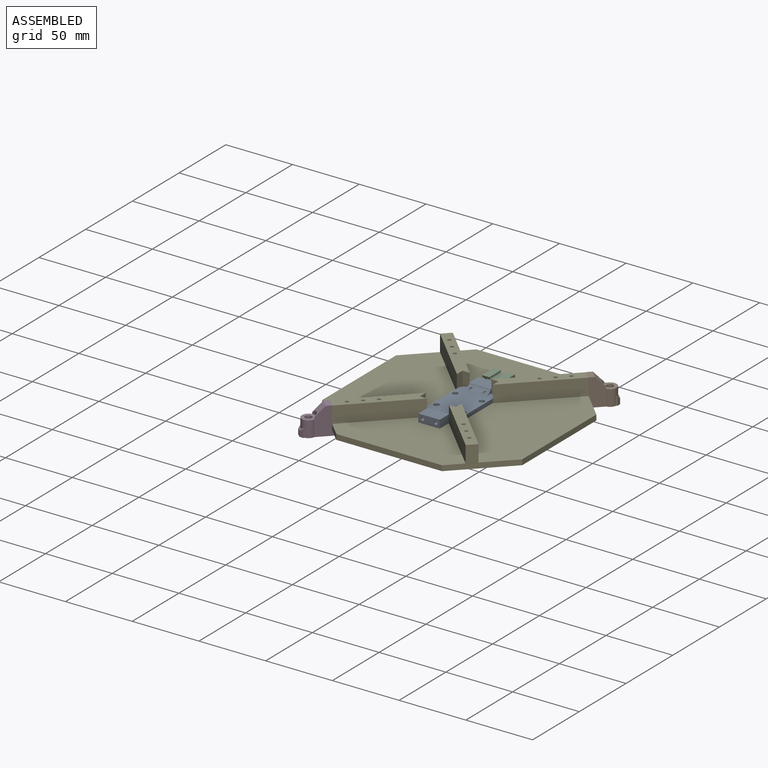
[diagram: assembled view]
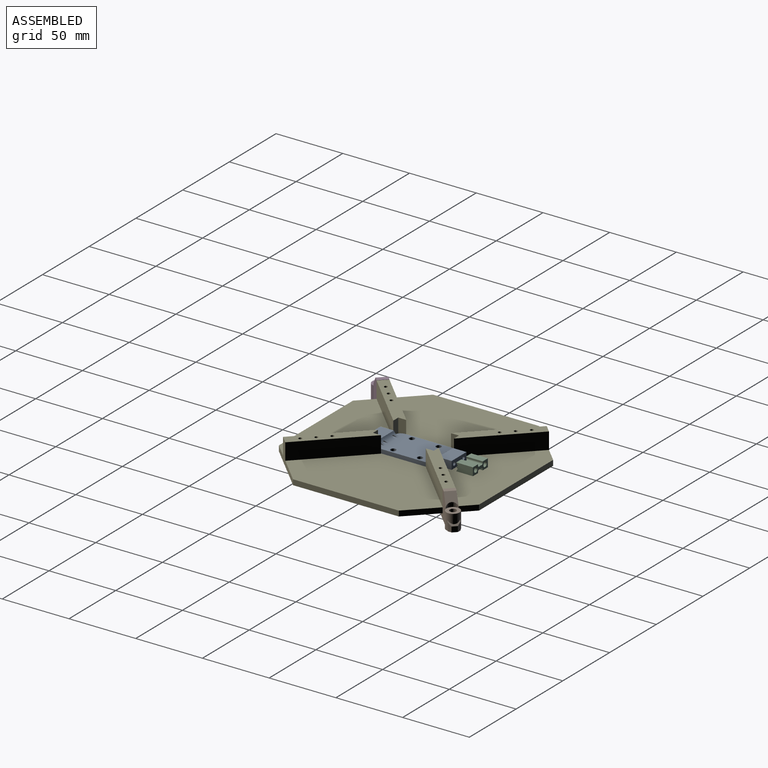
[diagram: assembled view, second angle]
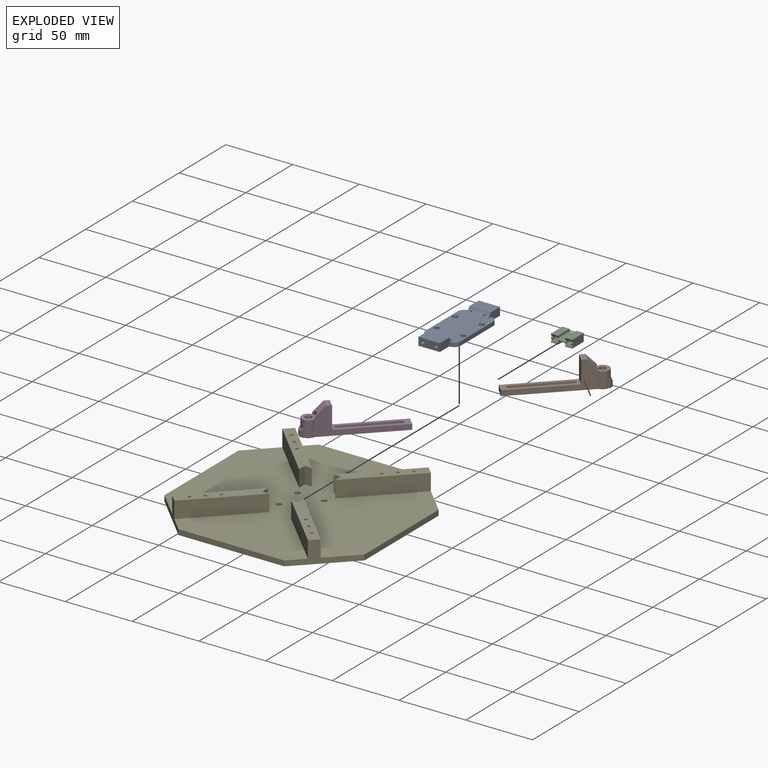
[diagram: exploded view]
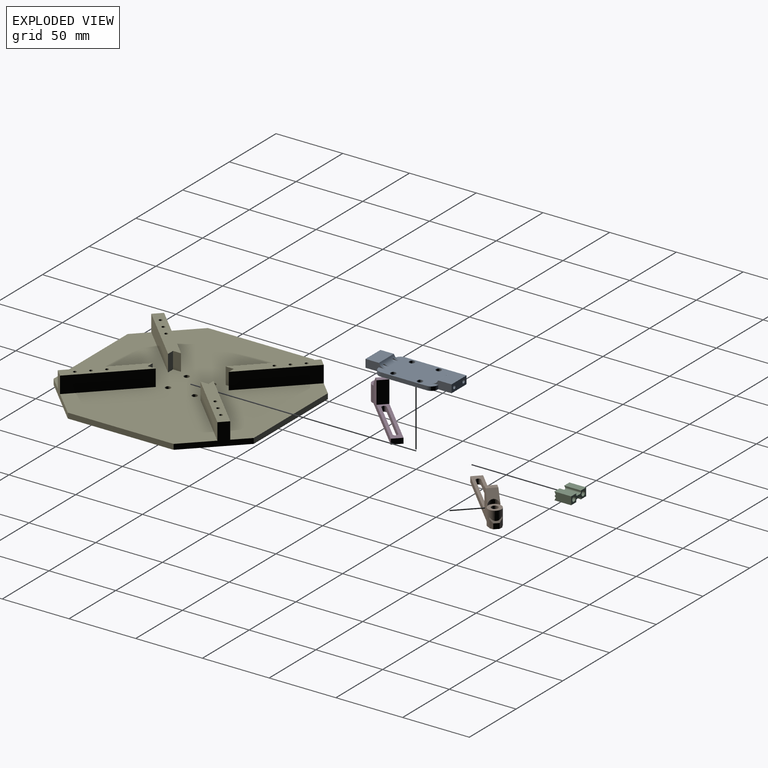
[diagram: exploded view, second angle]
ASSEMBLY  parts=5 mates=11
PART A: 34 faces, bbox 26.5x64.5x6 mm
  f0: plane 2.5x1.25mm, normal (0,-1,0), area 2.5mm2, adj f14,f27
  f1: plane 2.5x1.25mm, normal (0,-1,0), area 2.5mm2, adj f14,f26
  f2: plane 3x0.25mm, normal (0,-1,0), area 0.8mm2, adj f14,f15,f22,f33
  f3: plane 2.5x1.25mm, normal (0,1,0), area 2.5mm2, adj f14,f21
  f4: plane 3x0.25mm, normal (0,1,0), area 0.8mm2, adj f14,f15,f16,f30
  f5: plane 2.5x1.25mm, normal (0,1,0), area 2.5mm2, adj f14,f20
  f6: plane 34.5x3mm, normal (1,0,0), area 103.5mm2, adj f14,f15,f30,f33
  f7: plane 3x0.25mm, normal (0,1,0), area 0.8mm2, adj f14,f15,f18,f31
  f8: plane 34.5x3mm, normal (-1,0,0), area 103.5mm2, adj f14,f15,f31,f32
  f9: cylinder r=2mm len=4mm, axis (0,0,-1), area 37.7mm2, adj f14,f15
  f10: cylinder r=2mm len=4mm, axis (0,0,-1), area 37.7mm2, adj f14,f15
  f11: cylinder r=2mm len=4mm, axis (0,0,-1), area 37.7mm2, adj f14,f15
  f12: plane 3x0.25mm, normal (0,-1,0), area 0.8mm2, adj f14,f15,f24,f32
  f13: cylinder r=2mm len=4mm, axis (0,0,-1), area 37.7mm2, adj f14,f15
  f14: plane 44.5x26.5mm, normal (0,0,1), area 1006.7mm2, adj f0,f1,f2,f3,f4,f5,f6,f7
  f15: plane 64.5x26.5mm, normal (0,0,-1), area 1427.5mm2, adj f2,f4,f6,f7,f8,f9,f10,f11
  f16: plane 14.58x6mm, normal (1,0,0), area 63.8mm2, adj f4,f14,f15,f17,f19,f29
  f17: plane 16x6mm, normal (0,1,0), area 86.2mm2, adj f15,f16,f18,f19,f20,f21
  f18: plane 14.58x6mm, normal (-1,0,0), area 63.8mm2, adj f7,f14,f15,f17,f19,f29
  f19: plane 16x10mm, normal (0,0,1), area 160mm2, adj f16,f17,f18,f29
  f20: cylinder r=1.25mm len=14.58mm, axis (0,1,0), area 86.4mm2, adj f5,f14,f17,f29
  f21: cylinder r=1.25mm len=14.58mm, axis (0,1,0), area 86.4mm2, adj f3,f14,f17,f29
  f22: plane 14.58x6mm, normal (1,0,0), area 63.8mm2, adj f2,f14,f15,f23,f25,f28
  f23: plane 16x6mm, normal (0,-1,0), area 86.2mm2, adj f15,f22,f24,f25,f26,f27
  f24: plane 14.58x6mm, normal (-1,0,0), area 63.8mm2, adj f12,f14,f15,f23,f25,f28
  f25: plane 16x10mm, normal (0,0,1), area 160mm2, adj f22,f23,f24,f28
  f26: cylinder r=1.25mm len=14.58mm, axis (0,-1,0), area 86.4mm2, adj f1,f14,f23,f28
  f27: cylinder r=1.25mm len=14.58mm, axis (0,-1,0), area 86.4mm2, adj f0,f14,f23,f28
  f28: cylinder r=5mm len=16mm, axis (1,0,0), area 77mm2, adj f14,f22,f24,f25,f26,f27
  f29: cylinder r=5mm len=16mm, axis (-1,0,0), area 77mm2, adj f14,f16,f18,f19,f20,f21
  f30: cylinder r=5mm len=5mm, axis (0,0,1), area 23.6mm2, adj f4,f6,f14,f15
  f31: cylinder r=5mm len=5mm, axis (0,0,-1), area 23.6mm2, adj f7,f8,f14,f15
  f32: cylinder r=5mm len=5mm, axis (0,0,1), area 23.6mm2, adj f8,f12,f14,f15
  f33: cylinder r=5mm len=5mm, axis (0,0,-1), area 23.6mm2, adj f2,f6,f14,f15
PART B: 22 faces, bbox 70x10x20.6 mm
  f0: plane 8x7.26mm, normal (-0.72,0,-0.69), area 64.6mm2, adj f9,f11,f12,f21
  f1: cylinder r=2.5mm len=12mm, axis (0,0,1), area 188.5mm2, adj f5,f18
  f2: plane 7.11x1mm, normal (0,-1,0), area 6.6mm2, adj f5,f8,f17,f19
  f3: plane 7.11x1mm, normal (0,1,0), area 6.6mm2, adj f5,f8,f17,f20
  f4: plane 50x8mm, normal (0,0,-1), area 250.4mm2, adj f6,f10,f11,f12,f13,f14,f15,f16
  f5: plane 70x10mm, normal (0,0,1), area 394.9mm2, adj f1,f2,f3,f6,f7,f11,f12,f13
  f6: plane 8x4mm, normal (1,0,0), area 32mm2, adj f4,f5,f11,f12
  f7: plane 4x4mm, normal (-1,0,0), area 16mm2, adj f5,f8,f19,f20
  f8: plane 8x3.11mm, normal (-0.72,0,-0.69), area 12.7mm2, adj f2,f3,f7,f17,f19,f20
  f9: plane 8x4mm, normal (0,0,-1), area 32mm2, adj f0,f10,f11,f12
  f10: plane 16.6x8mm, normal (1,0,0), area 132.8mm2, adj f4,f9,f11,f12
  f11: plane 61x20.6mm, normal (0,-1,0), area 401.2mm2, adj f0,f4,f5,f6,f9,f10,f17,f21
  f12: plane 61x20.6mm, normal (0,1,0), area 401.2mm2, adj f0,f4,f5,f6,f9,f10,f17,f21
  f13: plane 40x4mm, normal (0,-1,0), area 160mm2, adj f4,f5,f14,f16
  f14: cylinder r=1.75mm len=4mm, axis (0,0,1), area 22mm2, adj f4,f5,f13,f15
  f15: plane 40x4mm, normal (0,1,0), area 160mm2, adj f4,f5,f14,f16
  f16: cylinder r=1.75mm len=4mm, axis (0,0,1), area 22mm2, adj f4,f5,f13,f15
  f17: cylinder r=5mm len=12mm, axis (0,0,1), area 212.4mm2, adj f2,f3,f5,f8,f11,f12,f18
  f18: plane 10x10mm, normal (0,0,-1), area 58.9mm2, adj f1,f17,f21
  f19: plane 6.08x2mm, normal (-0.71,-0.71,0), area 14.2mm2, adj f2,f5,f7,f8
  f20: plane 6.08x2mm, normal (-0.71,0.71,0), area 14.2mm2, adj f3,f5,f7,f8
  f21: extruded ~8x3.41mm, area 25mm2, adj f0,f11,f12,f18
PART C: 29 faces, bbox 16x12.5x6 mm
  f0: plane 12.5x5.5mm, normal (0,0,1), area 68.8mm2, adj f2,f9,f15,f23
  f1: plane 12.5x5.5mm, normal (0,0,-1), area 68.8mm2, adj f2,f9,f16,f21
  f2: plane 16x6mm, normal (0,-1,0), area 57.6mm2, adj f0,f1,f5,f6,f7,f8,f9,f10
  f3: plane 6.5x2mm, normal (0,0.89,-0.45), area 10.8mm2, adj f5,f7,f8,f14,f18,f22,f27
  f4: plane 6.5x2mm, normal (0,0.89,0.45), area 10.8mm2, adj f5,f7,f10,f11,f12,f19,f25
  f5: plane 12.5x6mm, normal (1,0,0), area 72mm2, adj f2,f3,f4,f8,f10,f12,f18
  f6: cylinder r=1.75mm len=12.5mm, axis (0,1,0), area 130.2mm2, adj f2,f11,f13,f14,f15,f16,f17
  f7: cylinder r=1.75mm len=12.5mm, axis (0,1,0), area 130.2mm2, adj f2,f3,f4,f11,f12,f14,f18
  f8: plane 12.5x5.5mm, normal (0,0,1), area 68.8mm2, adj f2,f3,f5,f22
  f9: plane 12.5x6mm, normal (-1,0,0), area 72mm2, adj f0,f1,f2,f13,f15,f16,f17
  f10: plane 12.5x5.5mm, normal (0,0,-1), area 68.8mm2, adj f2,f4,f5,f19
  f11: plane 7.13x1mm, normal (0,0.71,-0.71), area 9.5mm2, adj f4,f6,f7,f14,f16,f20
  f12: plane 1.56x1mm, normal (0,0.71,-0.71), area 1.9mm2, adj f4,f5,f7,f18
  f13: plane 1.56x1mm, normal (0,0.71,0.71), area 1.9mm2, adj f6,f9,f15,f17
  f14: plane 7.13x1mm, normal (0,0.71,0.71), area 9.5mm2, adj f3,f6,f7,f11,f15,f24
  f15: plane 6.5x2mm, normal (0,0.89,-0.45), area 10.8mm2, adj f0,f6,f9,f13,f14,f23,f28
  f16: plane 6.5x2mm, normal (0,0.89,0.45), area 10.8mm2, adj f1,f6,f9,f11,f17,f21,f26
  f17: plane 1.56x1mm, normal (0,0.71,-0.71), area 1.9mm2, adj f6,f9,f13,f16
  f18: plane 1.56x1mm, normal (0,0.71,0.71), area 1.9mm2, adj f3,f5,f7,f12
  f19: plane 12.5x1mm, normal (-1,0,0), area 12.2mm2, adj f2,f4,f10,f25
  f20: plane 11.5x3mm, normal (0,0,-1), area 34.5mm2, adj f2,f11,f25,f26
  f21: plane 12.5x1mm, normal (1,0,0), area 12.2mm2, adj f1,f2,f16,f26
  f22: plane 12.5x1mm, normal (-1,0,0), area 12.3mm2, adj f2,f3,f8,f27
  f23: plane 12.5x1mm, normal (1,0,0), area 12.3mm2, adj f0,f2,f15,f28
  f24: plane 11.5x3mm, normal (0,0,1), area 34.5mm2, adj f2,f14,f27,f28
  f25: cylinder r=1mm len=12mm, axis (0,-1,0), area 18.3mm2, adj f2,f4,f19,f20
  f26: cylinder r=1mm len=12mm, axis (0,1,0), area 18.3mm2, adj f2,f16,f20,f21
  f27: cylinder r=1mm len=12mm, axis (0,1,0), area 18.3mm2, adj f2,f3,f22,f24
  f28: cylinder r=1mm len=12mm, axis (0,-1,0), area 18.3mm2, adj f2,f15,f23,f24
PART D: same geometry as B
PART E: 70 faces, bbox 150x150x16.5 mm
  f0: plane 150x150mm, normal (0,0,-1), area 19551.5mm2, adj f14,f15,f16,f17,f18,f19,f20,f21
  f1: cylinder r=1.25mm len=13.5mm, axis (0,0,1), area 106mm2, adj f41,f69
  f2: cylinder r=1.25mm len=13.5mm, axis (0,0,1), area 106mm2, adj f41,f67
  f3: cylinder r=1.25mm len=13.5mm, axis (0,0,1), area 106mm2, adj f41,f65
  f4: cylinder r=1.25mm len=13.5mm, axis (0,0,1), area 106mm2, adj f36,f62
  f5: cylinder r=1.25mm len=13.5mm, axis (0,0,1), area 106mm2, adj f36,f60
  f6: cylinder r=1.25mm len=13.5mm, axis (0,0,1), area 106mm2, adj f36,f58
  f7: cylinder r=1.25mm len=13.5mm, axis (0,0,1), area 106mm2, adj f31,f57
  f8: cylinder r=1.25mm len=13.5mm, axis (0,0,1), area 106mm2, adj f31,f55
  f9: cylinder r=1.25mm len=13.5mm, axis (0,0,1), area 106mm2, adj f31,f53
  f10: cylinder r=1.25mm len=13.5mm, axis (0,0,1), area 106mm2, adj f26,f50
  f11: cylinder r=1.25mm len=13.5mm, axis (0,0,1), area 106mm2, adj f26,f48
  f12: cylinder r=1.25mm len=13.5mm, axis (0,0,1), area 106mm2, adj f26,f46
  f13: plane 150x150mm, normal (0,0,1), area 18111.6mm2, adj f14,f15,f16,f17,f18,f19,f20,f21
  f14: plane 79.29x4mm, normal (0,1,0), area 317.2mm2, adj f0,f13,f15,f21
  f15: plane 35.36x35.36mm, normal (-0.71,0.71,0), area 300mm2, adj f0,f13,f14,f16,f27,f28,f31
  f16: plane 79.29x4mm, normal (-1,0,0), area 317.2mm2, adj f0,f13,f15,f17
  f17: plane 35.36x35.36mm, normal (-0.71,-0.71,0), area 300mm2, adj f0,f13,f16,f18,f32,f35,f36
  f18: plane 79.29x4mm, normal (0,-1,0), area 317.2mm2, adj f0,f13,f17,f19
  f19: plane 35.36x35.36mm, normal (0.71,-0.71,0), area 300mm2, adj f0,f13,f18,f20,f37,f40,f41
  f20: plane 79.29x4mm, normal (1,0,0), area 317.2mm2, adj f0,f13,f19,f21
  f21: plane 35.36x35.36mm, normal (0.71,0.71,0), area 300mm2, adj f0,f13,f14,f20,f22,f25,f26
  f22: plane 41.85x41.85mm, normal (-0.71,0.71,0), area 739.9mm2, adj f13,f21,f23,f26
  f23: plane 12.5x5.31mm, normal (0,-1,0), area 66.4mm2, adj f13,f22,f24,f26
  f24: plane 12.5x6mm, normal (-1,0,0), area 75mm2, adj f13,f23,f25,f26
  f25: plane 42.2x42.2mm, normal (0.71,-0.71,0), area 746mm2, adj f13,f21,f24,f26
  f26: plane 47.85x47.51mm, normal (0,0,1), area 444.8mm2, adj f10,f11,f12,f21,f22,f23,f24,f25
  f27: plane 41.85x41.85mm, normal (0.71,0.71,0), area 739.9mm2, adj f13,f15,f30,f31
  f28: plane 42.2x42.2mm, normal (-0.71,-0.71,0), area 746mm2, adj f13,f15,f29,f31
  f29: plane 12.5x6mm, normal (1,0,0), area 75mm2, adj f13,f28,f30,f31
  f30: plane 12.5x5.31mm, normal (0,-1,0), area 66.4mm2, adj f13,f27,f29,f31
  f31: plane 47.85x47.51mm, normal (0,0,1), area 444.8mm2, adj f7,f8,f9,f15,f27,f28,f29,f30
  f32: plane 41.85x41.85mm, normal (0.71,-0.71,0), area 739.9mm2, adj f13,f17,f33,f36
  f33: plane 12.5x5.31mm, normal (0,1,0), area 66.4mm2, adj f13,f32,f34,f36
  f34: plane 12.5x6mm, normal (1,0,0), area 75mm2, adj f13,f33,f35,f36
  f35: plane 42.2x42.2mm, normal (-0.71,0.71,0), area 746mm2, adj f13,f17,f34,f36
  f36: plane 47.85x47.51mm, normal (0,0,1), area 444.8mm2, adj f4,f5,f6,f17,f32,f33,f34,f35
  f37: plane 42.2x42.2mm, normal (0.71,0.71,0), area 746mm2, adj f13,f19,f38,f41
  f38: plane 12.5x6mm, normal (-1,0,0), area 75mm2, adj f13,f37,f39,f41
  f39: plane 12.5x5.31mm, normal (0,1,0), area 66.4mm2, adj f13,f38,f40,f41
  f40: plane 41.85x41.85mm, normal (-0.71,-0.71,0), area 739.9mm2, adj f13,f19,f39,f41
  f41: plane 47.85x47.51mm, normal (0,0,1), area 444.8mm2, adj f1,f2,f3,f19,f37,f38,f39,f40
  f42: cylinder r=2mm len=4mm, axis (0,0,1), area 50.3mm2, adj f0,f13
  f43: cylinder r=2mm len=4mm, axis (0,0,1), area 50.3mm2, adj f0,f13
  f44: cylinder r=2mm len=4mm, axis (0,0,1), area 50.3mm2, adj f0,f13
  f45: cylinder r=2mm len=4mm, axis (0,0,1), area 50.3mm2, adj f0,f13
  f46: plane 6.5x6.5mm, normal (0,0,-1), area 28.3mm2, adj f12,f47
  f47: cylinder r=3.25mm len=6.5mm, axis (0,0,-1), area 61.3mm2, adj f0,f46
  f48: plane 6.5x6.5mm, normal (0,0,-1), area 28.3mm2, adj f11,f49
  f49: cylinder r=3.25mm len=6.5mm, axis (0,0,-1), area 61.3mm2, adj f0,f48
  f50: plane 6.5x6.5mm, normal (0,0,-1), area 28.3mm2, adj f10,f51
  f51: cylinder r=3.25mm len=6.5mm, axis (0,0,-1), area 61.3mm2, adj f0,f50
  f52: cylinder r=3.25mm len=6.5mm, axis (0,0,-1), area 61.3mm2, adj f0,f53
  f53: plane 6.5x6.5mm, normal (0,0,-1), area 28.3mm2, adj f9,f52
  f54: cylinder r=3.25mm len=6.5mm, axis (0,0,-1), area 61.3mm2, adj f0,f55
  f55: plane 6.5x6.5mm, normal (0,0,-1), area 28.3mm2, adj f8,f54
  f56: cylinder r=3.25mm len=6.5mm, axis (0,0,-1), area 61.3mm2, adj f0,f57
  f57: plane 6.5x6.5mm, normal (0,0,-1), area 28.3mm2, adj f7,f56
  f58: plane 6.5x6.5mm, normal (0,0,-1), area 28.3mm2, adj f6,f59
  f59: cylinder r=3.25mm len=6.5mm, axis (0,0,-1), area 61.3mm2, adj f0,f58
  f60: plane 6.5x6.5mm, normal (0,0,-1), area 28.3mm2, adj f5,f61
  f61: cylinder r=3.25mm len=6.5mm, axis (0,0,-1), area 61.3mm2, adj f0,f60
  f62: plane 6.5x6.5mm, normal (0,0,-1), area 28.3mm2, adj f4,f63
  f63: cylinder r=3.25mm len=6.5mm, axis (0,0,-1), area 61.3mm2, adj f0,f62
  f64: cylinder r=3.25mm len=6.5mm, axis (0,0,-1), area 61.3mm2, adj f0,f65
  f65: plane 6.5x6.5mm, normal (0,0,-1), area 28.3mm2, adj f3,f64
  f66: cylinder r=3.25mm len=6.5mm, axis (0,0,-1), area 61.3mm2, adj f0,f67
  f67: plane 6.5x6.5mm, normal (0,0,-1), area 28.3mm2, adj f2,f66
  f68: cylinder r=3.25mm len=6.5mm, axis (0,0,-1), area 61.3mm2, adj f0,f69
  f69: plane 6.5x6.5mm, normal (0,0,-1), area 28.3mm2, adj f1,f68
PLACE A at identity
PLACE B rot(axis=(0.38,-0.92,0),180deg) t=(17.51,26.42,-4)mm
PLACE C rot(axis=(0,0,-1),180deg) t=(0,35.74,3)mm
PLACE D rot(axis=(0.92,0.38,0),180deg) t=(-17.51,-26.42,-4)mm
PLACE E t=(0,0,-4)mm
MATE planar D.f10 <-> E.f17  axis (0.71,0.71,0) through (-52.87,-61.78,4.3)mm
MATE planar B.f11 <-> E.f25  axis (0.71,-0.71,0) through (48.69,51.94,-2.34)mm
MATE planar A.f15 <-> E.f13  axis (0,0,-1) through (0,0,0)mm
MATE cylindrical A.f9 <-> E.f45  axis (0,0,1) through (10,-10,3)mm
MATE cylindrical A.f11 <-> E.f44  axis (0,0,-1) through (-10,10,1.5)mm
MATE planar B.f4 <-> E.f0  axis (0,0,1) through (34.77,43.68,-4)mm
MATE cylindrical C.f7 <-> A.f21  axis (0,-1,0) through (-5,41.96,3)mm
MATE cylindrical C.f6 <-> A.f20  axis (0,-1,0) through (5,48.24,3)mm
MATE planar E.f32 <-> D.f3  axis (0.71,-0.71,0) through (-29.11,-43.68,6.25)mm
MATE planar D.f4 <-> E.f5  axis (0,0,1) through (-48.8,-60.18,-4)mm
MATE planar B.f10 <-> E.f21  axis (-0.71,-0.71,0) through (52.87,61.78,4.3)mm
